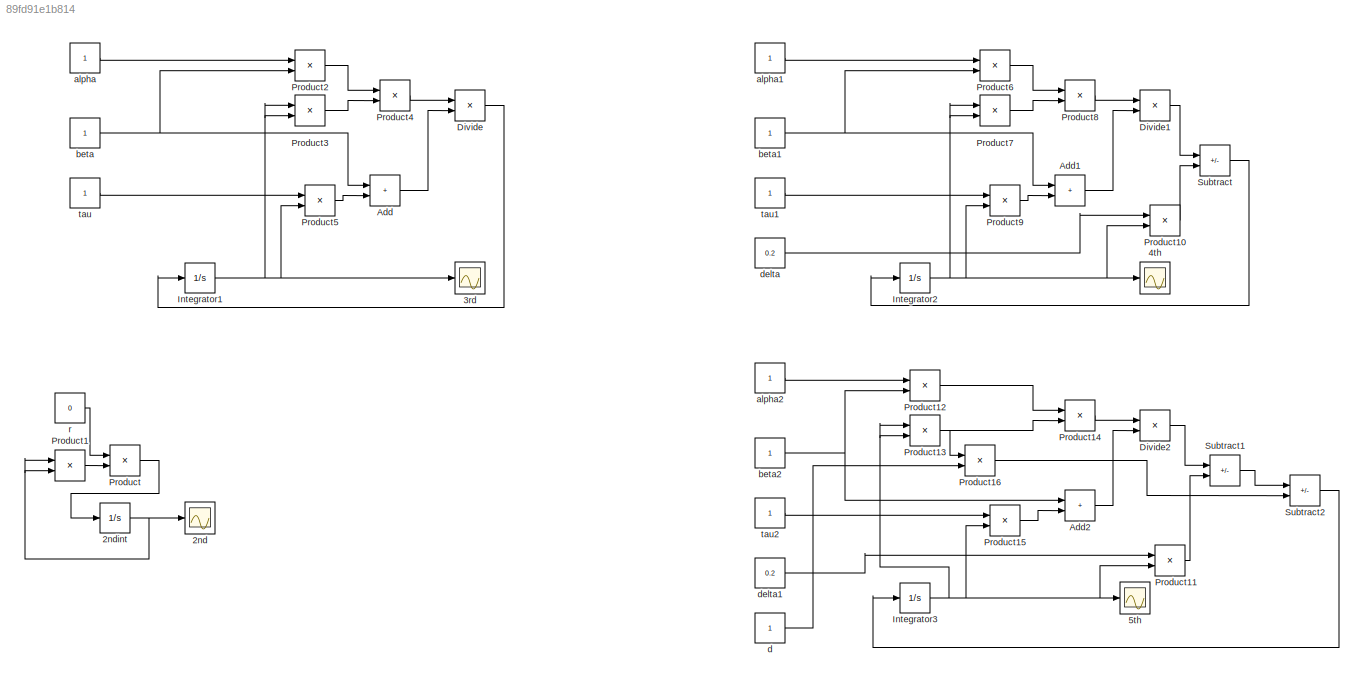
MODEL slx_89fd91e1b814
KIND model
CONFIG AbsTol = auto
CONFIG EnableMultiTasking = off
CONFIG FixedStep = auto
CONFIG MaxStep = auto
CONFIG MinStep = auto
CONFIG RelTol = 1e-3
CONFIG SampleTimeConstraint = Unconstrained
CONFIG SolverName = VariableStepAuto
CONFIG StartTime = 0.0
CONFIG StopTime = 30
BLOCK [Scope] 2nd
  Floating = off
  NumInputPorts = 1
  Ports = [1]
  ScopeSpecificationString = Simulink.scopes.TimeScopeBlockCfg('CurrentConfiguration', extmgr.ConfigurationSet(extmgr.Configuration('Core','General UI',true),extmgr.Configuration('Core','Source UI',true),extmgr.Configuration('Sources','WiredSimulink',true),extmgr.Configuration('Visuals','Time Domain',true,'SerializedDisplays',{struct('MinYLimReal','1.00000','MaxYLimReal','3.00000','YLabelReal','','MinYLimMag','1.00000','MaxYL...<+1353ch>
BLOCK [Integrator] 2ndint
  InitialCondition = 2
  Ports = [1, 1]
BLOCK [Scope] 3rd
  Floating = off
  NumInputPorts = 1
  Ports = [1]
  ScopeSpecificationString = Simulink.scopes.TimeScopeBlockCfg('CurrentConfiguration', extmgr.ConfigurationSet(extmgr.Configuration('Core','General UI',true),extmgr.Configuration('Core','Source UI',true),extmgr.Configuration('Sources','WiredSimulink',true,'DataLoggingVariableName','ScopeData1'),extmgr.Configuration('Visuals','Time Domain',true,'SerializedDisplays',{struct('MinYLimReal','-1620715440170.36523','MaxYLimReal','14...<+1497ch>
BLOCK [Scope] 4th
  Floating = off
  NumInputPorts = 1
  Ports = [1]
  ScopeSpecificationString = Simulink.scopes.TimeScopeBlockCfg('CurrentConfiguration', extmgr.ConfigurationSet(extmgr.Configuration('Core','General UI',true),extmgr.Configuration('Core','Source UI',true),extmgr.Configuration('Sources','WiredSimulink',true,'DataLoggingVariableName','ScopeData2'),extmgr.Configuration('Visuals','Time Domain',true,'SerializedDisplays',{struct('MinYLimReal','-3396841842.89635','MaxYLimReal','30571...<+1473ch>
BLOCK [Scope] 5th
  Floating = off
  NumInputPorts = 1
  Ports = [1]
  ScopeSpecificationString = Simulink.scopes.TimeScopeBlockCfg('CurrentConfiguration', extmgr.ConfigurationSet(extmgr.Configuration('Core','General UI',true),extmgr.Configuration('Core','Source UI',true),extmgr.Configuration('Sources','WiredSimulink',true,'DataLoggingVariableName','ScopeData3'),extmgr.Configuration('Visuals','Time Domain',true,'SerializedDisplays',{struct('MinYLimReal','-0.24849','MaxYLimReal','2.24983','YLab...<+1399ch>
BLOCK [Sum] Add
  IconShape = rectangular
  Ports = [2, 1]
BLOCK [Sum] Add1
  IconShape = rectangular
  Ports = [2, 1]
BLOCK [Sum] Add2
  IconShape = rectangular
  Ports = [2, 1]
BLOCK [Product] Divide
  Inputs = */
  Ports = [2, 1]
BLOCK [Product] Divide1
  Inputs = */
  Ports = [2, 1]
BLOCK [Product] Divide2
  Inputs = */
  Ports = [2, 1]
BLOCK [Integrator] Integrator1
  InitialCondition = 2
  Ports = [1, 1]
BLOCK [Integrator] Integrator2
  InitialCondition = 2
  Ports = [1, 1]
BLOCK [Integrator] Integrator3
  InitialCondition = 2
  Ports = [1, 1]
BLOCK [Product] Product
  Ports = [2, 1]
BLOCK [Product] Product1
  Ports = [2, 1]
BLOCK [Product] Product10
  Ports = [2, 1]
BLOCK [Product] Product11
  Ports = [2, 1]
BLOCK [Product] Product12
  Ports = [2, 1]
BLOCK [Product] Product13
  Ports = [2, 1]
BLOCK [Product] Product14
  Ports = [2, 1]
BLOCK [Product] Product15
  Ports = [2, 1]
BLOCK [Product] Product16
  Ports = [2, 1]
BLOCK [Product] Product2
  Ports = [2, 1]
BLOCK [Product] Product3
  Ports = [2, 1]
BLOCK [Product] Product4
  Ports = [2, 1]
BLOCK [Product] Product5
  Ports = [2, 1]
BLOCK [Product] Product6
  Ports = [2, 1]
BLOCK [Product] Product7
  Ports = [2, 1]
BLOCK [Product] Product8
  Ports = [2, 1]
BLOCK [Product] Product9
  Ports = [2, 1]
BLOCK [Sum] Subtract
  IconShape = rectangular
  Inputs = +-
  Ports = [2, 1]
BLOCK [Sum] Subtract1
  IconShape = rectangular
  Inputs = +-
  Ports = [2, 1]
BLOCK [Sum] Subtract2
  IconShape = rectangular
  Inputs = +-
  Ports = [2, 1]
BLOCK [Constant] alpha
BLOCK [Constant] alpha1
BLOCK [Constant] alpha2
BLOCK [Constant] beta
BLOCK [Constant] beta1
BLOCK [Constant] beta2
BLOCK [Constant] d
BLOCK [Constant] delta
  Value = 0.2
BLOCK [Constant] delta1
  Value = 0.2
BLOCK [Constant] r
  Value = 0
BLOCK [Constant] tau
BLOCK [Constant] tau1
BLOCK [Constant] tau2
NET 2ndint:1 -> 2nd:1, Product1:1, Product1:2
LINE Add1:1 -> Divide1:2
LINE Add2:1 -> Divide2:2
LINE Add:1 -> Divide:2
LINE Divide1:1 -> Subtract:1
LINE Divide2:1 -> Subtract1:1
LINE Divide:1 -> Integrator1:1
NET Integrator1:1 -> 3rd:1, Product3:1, Product3:2, Product5:2
NET Integrator2:1 -> 4th:1, Product10:2, Product7:1, Product7:2, Product9:2
NET Integrator3:1 -> 5th:1, Product11:2, Product13:1, Product13:2, Product15:2
LINE Product10:1 -> Subtract:2
LINE Product11:1 -> Subtract1:2
LINE Product12:1 -> Product14:1
NET Product13:1 -> Product14:2, Product16:1
LINE Product14:1 -> Divide2:1
LINE Product15:1 -> Add2:2
LINE Product16:1 -> Subtract2:2
LINE Product1:1 -> Product:2
LINE Product2:1 -> Product4:1
LINE Product3:1 -> Product4:2
LINE Product4:1 -> Divide:1
LINE Product5:1 -> Add:2
LINE Product6:1 -> Product8:1
LINE Product7:1 -> Product8:2
LINE Product8:1 -> Divide1:1
LINE Product9:1 -> Add1:2
LINE Product:1 -> 2ndint:1
LINE Subtract1:1 -> Subtract2:1
LINE Subtract2:1 -> Integrator3:1
LINE Subtract:1 -> Integrator2:1
LINE alpha1:1 -> Product6:1
LINE alpha2:1 -> Product12:1
LINE alpha:1 -> Product2:1
NET beta1:1 -> Add1:1, Product6:2
NET beta2:1 -> Add2:1, Product12:2
NET beta:1 -> Add:1, Product2:2
LINE d:1 -> Product16:2
LINE delta1:1 -> Product11:1
LINE delta:1 -> Product10:1
LINE r:1 -> Product:1
LINE tau1:1 -> Product9:1
LINE tau2:1 -> Product15:1
LINE tau:1 -> Product5:1
note: NET lines group one-source signal fan-out (src -> all destinations, sorted); 1:1 wires keep LINE
